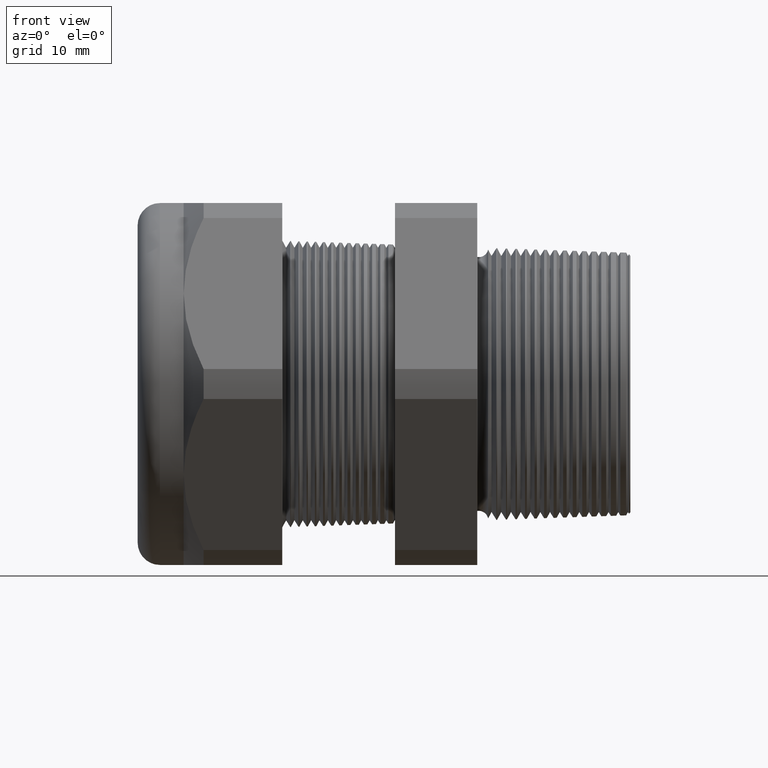
[diagram: clean part render]
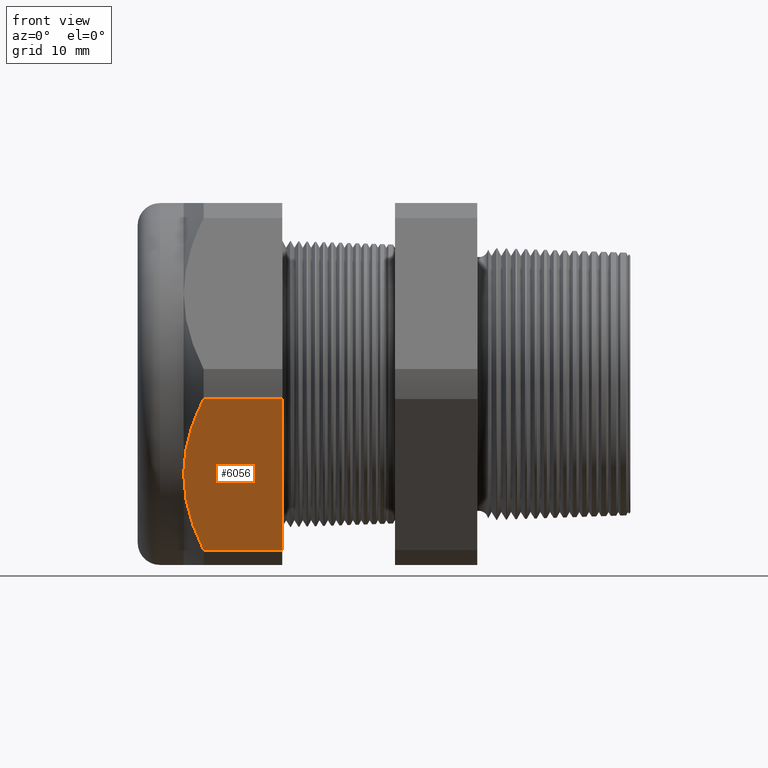
[diagram: same view with one face highlighted and labeled with its STEP entity id]
A machine part, front view. The second image highlights one B-rep face of the part: STEP entity #6056.
In plain terms, the highlighted planar face has unit normal (0, -0.866, -0.5).
Its self-contained STEP definition (entity closure, byte-faithful):
#3571 = ORIENTED_EDGE ( 'NONE', *, *, #5826, .T. ) ;
#3579 = VERTEX_POINT ( 'NONE', #4301 ) ;
#3583 = VERTEX_POINT ( 'NONE', #4287 ) ;
#4287 = CARTESIAN_POINT ( 'NONE',  ( -1.010314960629921100, -0.7194909755756819800, -0.05380507471562082100 ) ) ;
#4301 = CARTESIAN_POINT ( 'NONE',  ( -1.293145669291338600, -0.7194909755756819800, -0.05380507471562082100 ) ) ;
#4644 = CARTESIAN_POINT ( 'NONE',  ( -1.332638942225223600, -0.6692072927766704600, -0.1408989681151861800 ) ) ;
#4645 = CARTESIAN_POINT ( 'NONE',  ( -1.314767232512606100, -0.6945827664818915400, -0.09694735839161411400 ) ) ;
#4646 = CARTESIAN_POINT ( 'NONE',  ( -1.293145669291338600, -0.7194909755756819800, -0.05380507471562082100 ) ) ;
#4649 = B_SPLINE_CURVE_WITH_KNOTS ( 'NONE', 3,
 ( #4646, #4645, #4644, #4701, #4700, #4699, #4698, #4697, #4696, #4695 ),
 .UNSPECIFIED., .F., .F.,
 ( 4, 2, 2, 2, 4 ),
 ( 2.483249165348705300E-007, 0.004082012451910165000, 0.006122894515406979500, 0.007143335547155381600, 0.008163776578903783600 ),
 .UNSPECIFIED. ) ;
#4650 = CARTESIAN_POINT ( 'NONE',  ( -1.364645669291338500, -0.5629165124598851700, -0.3250000000000001800 ) ) ;
#4676 = CARTESIAN_POINT ( 'NONE',  ( -1.293145669291338600, -0.4063420493440881300, -0.5961949252843793400 ) ) ;
#4677 = CARTESIAN_POINT ( 'NONE',  ( -1.314794001287756600, -0.4312810962751702500, -0.5529992289074007200 ) ) ;
#4678 = CARTESIAN_POINT ( 'NONE',  ( -1.332917759362547400, -0.4570573558384616300, -0.5083534377146963200 ) ) ;
#4679 = CARTESIAN_POINT ( 'NONE',  ( -1.357805912917037400, -0.5092737903524782200, -0.4179119201463270500 ) ) ;
#4680 = CARTESIAN_POINT ( 'NONE',  ( -1.364645669291338000, -0.5358248930679733200, -0.3719240612461092200 ) ) ;
#4681 = CARTESIAN_POINT ( 'NONE',  ( -1.364645669291338500, -0.5629165124598851700, -0.3250000000000001800 ) ) ;
#4683 = B_SPLINE_CURVE_WITH_KNOTS ( 'NONE', 3,
 ( #4681, #4680, #4679, #4678, #4677, #4676 ),
 .UNSPECIFIED., .F., .F.,
 ( 4, 2, 4 ),
 ( 0.008163776578903783600, 0.01224274182034620000, 0.01632170706178861700 ),
 .UNSPECIFIED. ) ;
#4695 = CARTESIAN_POINT ( 'NONE',  ( -1.364645669291338500, -0.5629165124598851700, -0.3250000000000001800 ) ) ;
#4696 = CARTESIAN_POINT ( 'NONE',  ( -1.364645669291339100, -0.5696940647084652900, -0.3132609351545070900 ) ) ;
#4697 = CARTESIAN_POINT ( 'NONE',  ( -1.364216759191442700, -0.5765336067434361200, -0.3014145008494348900 ) ) ;
#4698 = CARTESIAN_POINT ( 'NONE',  ( -1.362513212994343100, -0.5901225526399743700, -0.2778777561353256200 ) ) ;
#4699 = CARTESIAN_POINT ( 'NONE',  ( -1.361244147852752800, -0.5968650273424733800, -0.2661994473818493100 ) ) ;
#4700 = CARTESIAN_POINT ( 'NONE',  ( -1.356260635251699000, -0.6169458720203931900, -0.2314184041407926800 ) ) ;
#4701 = CARTESIAN_POINT ( 'NONE',  ( -1.351369503974020800, -0.6301376168794387000, -0.2085696318044401900 ) ) ;
#5123 = DIRECTION ( 'NONE',  ( 0.0000000000000000000, 0.5000000000000001100, -0.8660254037844386000 ) ) ;
#5124 = DIRECTION ( 'NONE',  ( 0.0000000000000000000, -0.8660254037844386000, -0.5000000000000001100 ) ) ;
#5125 = CARTESIAN_POINT ( 'NONE',  ( 0.2400000000000001900, -0.4063420493440883000, -0.5961949252843793400 ) ) ;
#5126 = AXIS2_PLACEMENT_3D ( 'NONE', #5125, #5124, #5123 ) ;
#5127 = PLANE ( 'NONE',  #5126 ) ;
#5128 = FACE_OUTER_BOUND ( 'NONE', #6095, .T. ) ;
#5133 = CARTESIAN_POINT ( 'NONE',  ( -1.010314960629921100, -0.4063420493440881300, -0.5961949252843793400 ) ) ;
#5138 = CARTESIAN_POINT ( 'NONE',  ( -1.293145669291338600, -0.4063420493440881300, -0.5961949252843793400 ) ) ;
#5170 = DIRECTION ( 'NONE',  ( -1.000000000000000000, 0.0000000000000000000, 0.0000000000000000000 ) ) ;
#5171 = VECTOR ( 'NONE', #5170, 39.37007874015748100 ) ;
#5172 = CARTESIAN_POINT ( 'NONE',  ( 0.2400000000000001900, -0.4063420493440881300, -0.5961949252843793400 ) ) ;
#5173 = LINE ( 'NONE', #5172, #5171 ) ;
#5187 = DIRECTION ( 'NONE',  ( -1.000000000000000000, 0.0000000000000000000, 0.0000000000000000000 ) ) ;
#5188 = VECTOR ( 'NONE', #5187, 39.37007874015748100 ) ;
#5189 = CARTESIAN_POINT ( 'NONE',  ( 0.2400000000000001900, -0.7194909755756819800, -0.05380507471562082100 ) ) ;
#5190 = LINE ( 'NONE', #5189, #5188 ) ;
#5191 = DIRECTION ( 'NONE',  ( 0.0000000000000000000, 0.5000000000000001100, -0.8660254037844386000 ) ) ;
#5192 = VECTOR ( 'NONE', #5191, 39.37007874015748100 ) ;
#5193 = CARTESIAN_POINT ( 'NONE',  ( -1.010314960629921100, -0.4341665124598851900, -0.5480015414744932000 ) ) ;
#5194 = LINE ( 'NONE', #5193, #5192 ) ;
#5821 = ORIENTED_EDGE ( 'NONE', *, *, #5829, .T. ) ;
#5822 = VERTEX_POINT ( 'NONE', #4650 ) ;
#5826 = EDGE_CURVE ( 'NONE', #3579, #5822, #4649, .T. ) ;
#5829 = EDGE_CURVE ( 'NONE', #5822, #6052, #4683, .T. ) ;
#6052 = VERTEX_POINT ( 'NONE', #5138 ) ;
#6053 = VERTEX_POINT ( 'NONE', #5133 ) ;
#6056 = ADVANCED_FACE ( 'NONE', ( #5128 ), #5127, .T. ) ;
#6072 = EDGE_CURVE ( 'NONE', #6053, #6052, #5173, .T. ) ;
#6087 = ORIENTED_EDGE ( 'NONE', *, *, #6072, .F. ) ;
#6092 = ORIENTED_EDGE ( 'NONE', *, *, #6093, .F. ) ;
#6093 = EDGE_CURVE ( 'NONE', #3583, #6053, #5194, .T. ) ;
#6094 = EDGE_CURVE ( 'NONE', #3583, #3579, #5190, .T. ) ;
#6095 = EDGE_LOOP ( 'NONE', ( #6096, #3571, #5821, #6087, #6092 ) ) ;
#6096 = ORIENTED_EDGE ( 'NONE', *, *, #6094, .T. ) ;